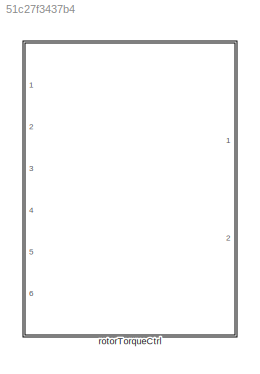
MODEL slx_51c27f3437b4
KIND library
CONFIG AbsTol = auto
CONFIG EnableMultiTasking = off
CONFIG FixedStep = auto
CONFIG MaxStep = auto
CONFIG MinStep = auto
CONFIG RelTol = 1e-3
CONFIG SampleTimeConstraint = Unconstrained
CONFIG SolverName = VariableStepAuto
CONFIG StartTime = 0.0
CONFIG StopTime = 10.0
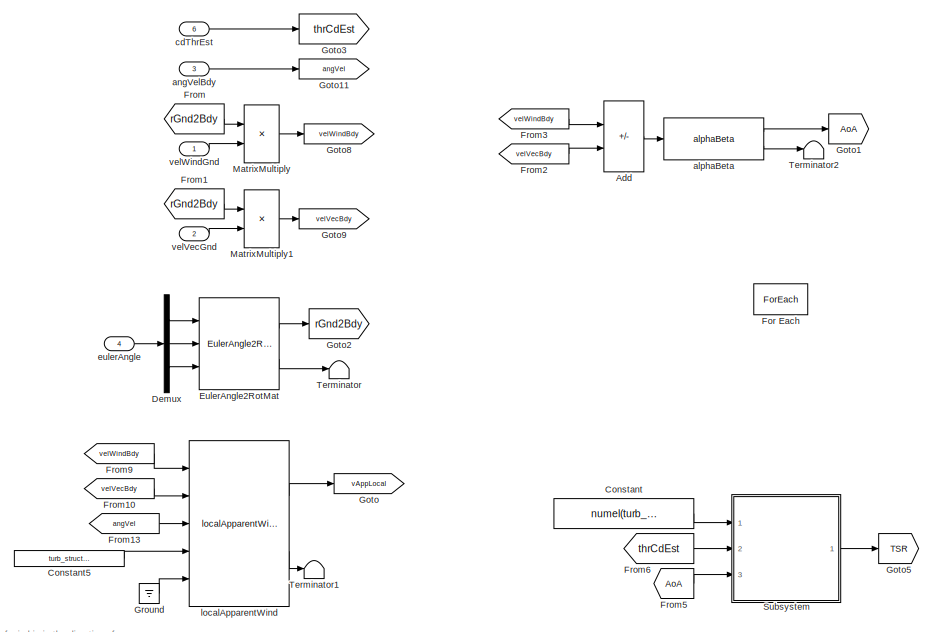
[diagram: rotorTorqueCtrl - part 1/2, central region]
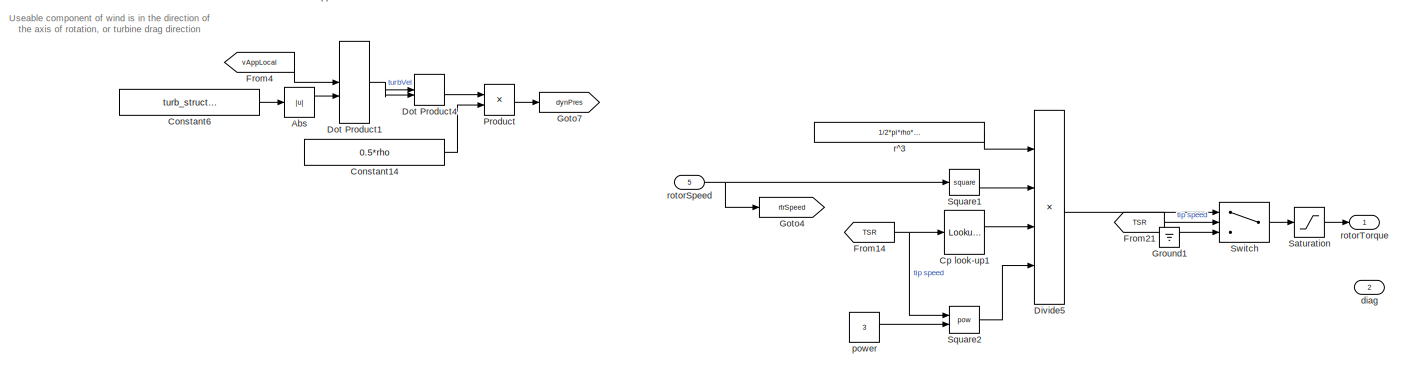
[diagram: rotorTorqueCtrl - part 2/2, full width, bottom band]
BLOCK [SubSystem] rotorTorqueCtrl
  Ports = [6, 2]
  RequestExecContextInheritance = off
  TreatAsAtomicUnit = on
BLOCK [Abs] rotorTorqueCtrl/Abs
  SaturateOnIntegerOverflow = off
BLOCK [Sum] rotorTorqueCtrl/Add
  IconShape = rectangular
  Inputs = +-
  Ports = [2, 1]
BLOCK [Constant] rotorTorqueCtrl/Constant
  Value = numel(turb_struct.CpLookup)
BLOCK [Constant] rotorTorqueCtrl/Constant14
  Value = 0.5*rho
BLOCK [Constant] rotorTorqueCtrl/Constant5
  Value = turb_struct.attachPtVec
BLOCK [Constant] rotorTorqueCtrl/Constant6
  Value = turb_struct.axisUnitVec
BLOCK [Lookup_n-D] rotorTorqueCtrl/Cp look-up1
  BreakpointsForDimension1 = turb_struct.RPMref
  InputPortMap = u0
  InternalRulePriority = Speed
  NumberOfTableDimensions = 1
  Ports = [1, 1]
  RndMeth = Simplest
  Table = turb_struct.CpLookup
BLOCK [Demux] rotorTorqueCtrl/Demux
  Outputs = 3
  Ports = [1, 3]
BLOCK [Product] rotorTorqueCtrl/Divide5
  Inputs = ***/
  Ports = [4, 1]
BLOCK [DotProduct] rotorTorqueCtrl/Dot Product1
  OutDataTypeStr = Inherit: Inherit via internal rule
BLOCK [DotProduct] rotorTorqueCtrl/Dot Product4
  OutDataTypeStr = Inherit: Inherit via internal rule
BLOCK [Reference] rotorTorqueCtrl/EulerAngle2RotMat  REF=sixDoFDynamicsCoupledFossenTurbDynamics/sixDoFDynamicsCoupledFossenTurbDynamics/EulerAngle2RotMat
  Ports = [3, 2]
  SourceBlock = sixDoFDynamicsCoupledFossenTurbDynamics/sixDoFDynamicsCoupledFossenTurbDynamics/EulerAngle2RotMat
  SourceType = SubSystem
BLOCK [ForEach] rotorTorqueCtrl/For Each
  DisableCoverage = on
  IterateSubsysMaskParameter = on,off
  Ports = []
  SubsysMaskParameterIterationDimension = 2,1
  SubsysMaskParameterIterationStepSize = 1,1
BLOCK [From] rotorTorqueCtrl/From
  GotoTag = rGnd2Bdy
BLOCK [From] rotorTorqueCtrl/From1
  GotoTag = rGnd2Bdy
BLOCK [From] rotorTorqueCtrl/From10
  GotoTag = velVecBdy
BLOCK [From] rotorTorqueCtrl/From13
  GotoTag = angVel
BLOCK [From] rotorTorqueCtrl/From14
  GotoTag = TSR
BLOCK [From] rotorTorqueCtrl/From2
  GotoTag = velVecBdy
BLOCK [From] rotorTorqueCtrl/From21
  GotoTag = TSR
BLOCK [From] rotorTorqueCtrl/From3
  GotoTag = velWindBdy
BLOCK [From] rotorTorqueCtrl/From4
  GotoTag = vAppLocal
BLOCK [From] rotorTorqueCtrl/From5
  GotoTag = AoA
BLOCK [From] rotorTorqueCtrl/From6
  GotoTag = thrCdEst
BLOCK [From] rotorTorqueCtrl/From9
  GotoTag = velWindBdy
BLOCK [Goto] rotorTorqueCtrl/Goto
  GotoTag = vAppLocal
BLOCK [Goto] rotorTorqueCtrl/Goto1
  GotoTag = AoA
BLOCK [Goto] rotorTorqueCtrl/Goto11
  GotoTag = angVel
BLOCK [Goto] rotorTorqueCtrl/Goto2
  GotoTag = rGnd2Bdy
BLOCK [Goto] rotorTorqueCtrl/Goto3
  GotoTag = thrCdEst
BLOCK [Goto] rotorTorqueCtrl/Goto4
  GotoTag = rtrSpeed
BLOCK [Goto] rotorTorqueCtrl/Goto5
  GotoTag = TSR
BLOCK [Goto] rotorTorqueCtrl/Goto7
  GotoTag = dynPres
BLOCK [Goto] rotorTorqueCtrl/Goto8
  GotoTag = velWindBdy
BLOCK [Goto] rotorTorqueCtrl/Goto9
  GotoTag = velVecBdy
BLOCK [Ground] rotorTorqueCtrl/Ground
BLOCK [Ground] rotorTorqueCtrl/Ground1
BLOCK [Product] rotorTorqueCtrl/MatrixMultiply
  Multiplication = Matrix(*)
  Ports = [2, 1]
BLOCK [Product] rotorTorqueCtrl/MatrixMultiply1
  Multiplication = Matrix(*)
  Ports = [2, 1]
BLOCK [Product] rotorTorqueCtrl/Product
  Ports = [2, 1]
BLOCK [Saturate] rotorTorqueCtrl/Saturation
  LowerLimit = -turb_struct.torqueLim
  UpperLimit = turb_struct.torqueLim
BLOCK [Math] rotorTorqueCtrl/Square1
  Operator = square
  Ports = [1, 1]
BLOCK [Math] rotorTorqueCtrl/Square2
  Operator = pow
  Ports = [2, 1]
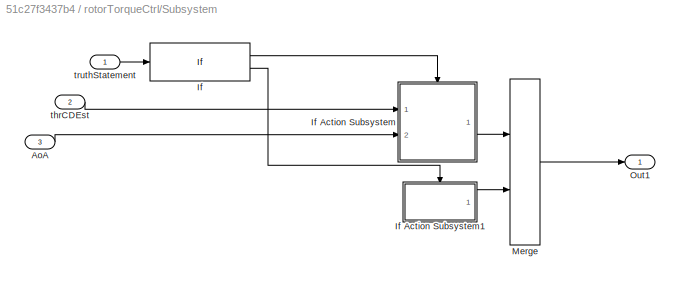
BLOCK [SubSystem] rotorTorqueCtrl/Subsystem
  Ports = [3, 1]
  RequestExecContextInheritance = off
BLOCK [Inport] rotorTorqueCtrl/Subsystem/AoA
  Port = 3
BLOCK [If] rotorTorqueCtrl/Subsystem/If
  IfExpression = u1 > 2
  Ports = [1, 2]
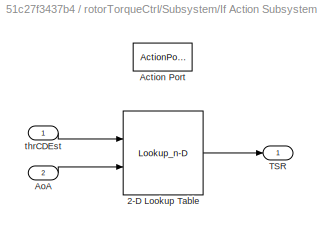
BLOCK [SubSystem] rotorTorqueCtrl/Subsystem/If Action Subsystem
  Ports = [2, 1, 0, 0, 0, 0, 0, 1]
  RequestExecContextInheritance = off
  TreatAsAtomicUnit = on
BLOCK [Lookup_n-D] rotorTorqueCtrl/Subsystem/If Action Subsystem/2-D Lookup Table
  BreakpointsForDimension1 = thrCD
  BreakpointsForDimension2 = AoA
  InputPortMap = u0,u1
  InternalRulePriority = Speed
  Ports = [2, 1]
  RndMeth = Simplest
  Table = gammaDes
BLOCK [ActionPort] rotorTorqueCtrl/Subsystem/If Action Subsystem/Action Port
  ActionPortLabel = if(u1 > 2)
BLOCK [Inport] rotorTorqueCtrl/Subsystem/If Action Subsystem/AoA
  Port = 2
BLOCK [Outport] rotorTorqueCtrl/Subsystem/If Action Subsystem/TSR
BLOCK [Inport] rotorTorqueCtrl/Subsystem/If Action Subsystem/thrCDEst
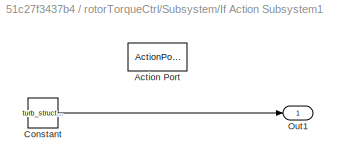
BLOCK [SubSystem] rotorTorqueCtrl/Subsystem/If Action Subsystem1
  Ports = [0, 1, 0, 0, 0, 0, 0, 1]
  RequestExecContextInheritance = off
  TreatAsAtomicUnit = on
BLOCK [ActionPort] rotorTorqueCtrl/Subsystem/If Action Subsystem1/Action Port
  ActionPortLabel = else
BLOCK [Constant] rotorTorqueCtrl/Subsystem/If Action Subsystem1/Constant
  Value = turb_struct.optTSR
BLOCK [Outport] rotorTorqueCtrl/Subsystem/If Action Subsystem1/Out1
BLOCK [Merge] rotorTorqueCtrl/Subsystem/Merge
  Ports = [2, 1]
BLOCK [Outport] rotorTorqueCtrl/Subsystem/Out1
BLOCK [Inport] rotorTorqueCtrl/Subsystem/thrCDEst
  Port = 2
BLOCK [Inport] rotorTorqueCtrl/Subsystem/truthStatement
BLOCK [Switch] rotorTorqueCtrl/Switch
  Criteria = u2 > Threshold
  InputSameDT = off
  SaturateOnIntegerOverflow = off
BLOCK [Terminator] rotorTorqueCtrl/Terminator
BLOCK [Terminator] rotorTorqueCtrl/Terminator1
BLOCK [Terminator] rotorTorqueCtrl/Terminator2
BLOCK [Reference] rotorTorqueCtrl/alphaBeta  REF=alphaBeta_ul/alphaBeta
  Ports = [1, 2]
  SourceBlock = alphaBeta_ul/alphaBeta
  SourceType = SubSystem
BLOCK [Inport] rotorTorqueCtrl/angVelBdy
  Port = 3
BLOCK [Inport] rotorTorqueCtrl/cdThrEst
  Port = 6
BLOCK [Outport] rotorTorqueCtrl/diag
  ConcatenationDimension = 1
  Port = 2
BLOCK [Inport] rotorTorqueCtrl/eulerAngle
  Port = 4
BLOCK [Reference] rotorTorqueCtrl/localApparentWind  REF=localApparentWind_ul/localApparentWind
  Ports = [5, 2]
  SourceBlock = localApparentWind_ul/localApparentWind
  SourceType = SubSystem
BLOCK [Constant] rotorTorqueCtrl/power
  Value = 3
BLOCK [Constant] rotorTorqueCtrl/r^3
  Value = 1/2*pi*rho*(turb_struct.diameter/2)^5
BLOCK [Inport] rotorTorqueCtrl/rotorSpeed
  Partition = on
  PartitionDimension = 1
  PartitionOffset = 0
  PartitionWidth = 1
  Port = 5
BLOCK [Outport] rotorTorqueCtrl/rotorTorque
  ConcatenationDimension = 1
BLOCK [Inport] rotorTorqueCtrl/velVecGnd
  Port = 2
BLOCK [Inport] rotorTorqueCtrl/velWindGnd
ANNOTATION rotorTorqueCtrl: Useable component of wind is in the direction of the axis of rotation, or turbine drag direction
LINE rotorTorqueCtrl/Abs:1 -> rotorTorqueCtrl/Dot Product1:2
LINE rotorTorqueCtrl/Add:1 -> rotorTorqueCtrl/alphaBeta:1
LINE rotorTorqueCtrl/Constant14:1 -> rotorTorqueCtrl/Product:2
LINE rotorTorqueCtrl/Constant5:1 -> rotorTorqueCtrl/localApparentWind:4
LINE rotorTorqueCtrl/Constant6:1 -> rotorTorqueCtrl/Abs:1
LINE rotorTorqueCtrl/Constant:1 -> rotorTorqueCtrl/Subsystem:1
LINE rotorTorqueCtrl/Cp look-up1:1 -> rotorTorqueCtrl/Divide5:3
LINE rotorTorqueCtrl/Demux:1 -> rotorTorqueCtrl/EulerAngle2RotMat:1
LINE rotorTorqueCtrl/Demux:2 -> rotorTorqueCtrl/EulerAngle2RotMat:2
LINE rotorTorqueCtrl/Demux:3 -> rotorTorqueCtrl/EulerAngle2RotMat:3
LINE rotorTorqueCtrl/Divide5:1 -> rotorTorqueCtrl/Switch:1
NET rotorTorqueCtrl/Dot Product1:1 -> rotorTorqueCtrl/Dot Product4:1, rotorTorqueCtrl/Dot Product4:2
LINE rotorTorqueCtrl/Dot Product4:1 -> rotorTorqueCtrl/Product:1
LINE rotorTorqueCtrl/EulerAngle2RotMat:1 -> rotorTorqueCtrl/Goto2:1
LINE rotorTorqueCtrl/EulerAngle2RotMat:2 -> rotorTorqueCtrl/Terminator:1
LINE rotorTorqueCtrl/From10:1 -> rotorTorqueCtrl/localApparentWind:2
LINE rotorTorqueCtrl/From13:1 -> rotorTorqueCtrl/localApparentWind:3
NET rotorTorqueCtrl/From14:1 -> rotorTorqueCtrl/Cp look-up1:1, rotorTorqueCtrl/Square2:1
LINE rotorTorqueCtrl/From1:1 -> rotorTorqueCtrl/MatrixMultiply1:1
LINE rotorTorqueCtrl/From21:1 -> rotorTorqueCtrl/Switch:2
LINE rotorTorqueCtrl/From2:1 -> rotorTorqueCtrl/Add:2
LINE rotorTorqueCtrl/From3:1 -> rotorTorqueCtrl/Add:1
LINE rotorTorqueCtrl/From4:1 -> rotorTorqueCtrl/Dot Product1:1
LINE rotorTorqueCtrl/From5:1 -> rotorTorqueCtrl/Subsystem:3
LINE rotorTorqueCtrl/From6:1 -> rotorTorqueCtrl/Subsystem:2
LINE rotorTorqueCtrl/From9:1 -> rotorTorqueCtrl/localApparentWind:1
LINE rotorTorqueCtrl/From:1 -> rotorTorqueCtrl/MatrixMultiply:1
LINE rotorTorqueCtrl/Ground1:1 -> rotorTorqueCtrl/Switch:3
LINE rotorTorqueCtrl/Ground:1 -> rotorTorqueCtrl/localApparentWind:5
LINE rotorTorqueCtrl/MatrixMultiply1:1 -> rotorTorqueCtrl/Goto9:1
LINE rotorTorqueCtrl/MatrixMultiply:1 -> rotorTorqueCtrl/Goto8:1
LINE rotorTorqueCtrl/Product:1 -> rotorTorqueCtrl/Goto7:1
LINE rotorTorqueCtrl/Saturation:1 -> rotorTorqueCtrl/rotorTorque:1
LINE rotorTorqueCtrl/Square1:1 -> rotorTorqueCtrl/Divide5:2
LINE rotorTorqueCtrl/Square2:1 -> rotorTorqueCtrl/Divide5:4
LINE rotorTorqueCtrl/Subsystem/AoA:1 -> rotorTorqueCtrl/Subsystem/If Action Subsystem:2
LINE rotorTorqueCtrl/Subsystem/If Action Subsystem/2-D Lookup Table:1 -> rotorTorqueCtrl/Subsystem/If Action Subsystem/TSR:1
LINE rotorTorqueCtrl/Subsystem/If Action Subsystem/AoA:1 -> rotorTorqueCtrl/Subsystem/If Action Subsystem/2-D Lookup Table:2
LINE rotorTorqueCtrl/Subsystem/If Action Subsystem/thrCDEst:1 -> rotorTorqueCtrl/Subsystem/If Action Subsystem/2-D Lookup Table:1
LINE rotorTorqueCtrl/Subsystem/If Action Subsystem1/Constant:1 -> rotorTorqueCtrl/Subsystem/If Action Subsystem1/Out1:1
LINE rotorTorqueCtrl/Subsystem/If Action Subsystem1:1 -> rotorTorqueCtrl/Subsystem/Merge:2
LINE rotorTorqueCtrl/Subsystem/If Action Subsystem:1 -> rotorTorqueCtrl/Subsystem/Merge:1
LINE rotorTorqueCtrl/Subsystem/If:1 -> rotorTorqueCtrl/Subsystem/If Action Subsystem:ifaction
LINE rotorTorqueCtrl/Subsystem/If:2 -> rotorTorqueCtrl/Subsystem/If Action Subsystem1:ifaction
LINE rotorTorqueCtrl/Subsystem/Merge:1 -> rotorTorqueCtrl/Subsystem/Out1:1
LINE rotorTorqueCtrl/Subsystem/thrCDEst:1 -> rotorTorqueCtrl/Subsystem/If Action Subsystem:1
LINE rotorTorqueCtrl/Subsystem/truthStatement:1 -> rotorTorqueCtrl/Subsystem/If:1
LINE rotorTorqueCtrl/Subsystem:1 -> rotorTorqueCtrl/Goto5:1
LINE rotorTorqueCtrl/Switch:1 -> rotorTorqueCtrl/Saturation:1
LINE rotorTorqueCtrl/alphaBeta:1 -> rotorTorqueCtrl/Goto1:1
LINE rotorTorqueCtrl/alphaBeta:2 -> rotorTorqueCtrl/Terminator2:1
LINE rotorTorqueCtrl/angVelBdy:1 -> rotorTorqueCtrl/Goto11:1
LINE rotorTorqueCtrl/cdThrEst:1 -> rotorTorqueCtrl/Goto3:1
LINE rotorTorqueCtrl/eulerAngle:1 -> rotorTorqueCtrl/Demux:1
LINE rotorTorqueCtrl/localApparentWind:1 -> rotorTorqueCtrl/Goto:1
LINE rotorTorqueCtrl/localApparentWind:2 -> rotorTorqueCtrl/Terminator1:1
LINE rotorTorqueCtrl/power:1 -> rotorTorqueCtrl/Square2:2
LINE rotorTorqueCtrl/r^3:1 -> rotorTorqueCtrl/Divide5:1
NET rotorTorqueCtrl/rotorSpeed:1 -> rotorTorqueCtrl/Goto4:1, rotorTorqueCtrl/Square1:1
LINE rotorTorqueCtrl/velVecGnd:1 -> rotorTorqueCtrl/MatrixMultiply1:2
LINE rotorTorqueCtrl/velWindGnd:1 -> rotorTorqueCtrl/MatrixMultiply:2
note: NET lines group one-source signal fan-out (src -> all destinations, sorted); 1:1 wires keep LINE
